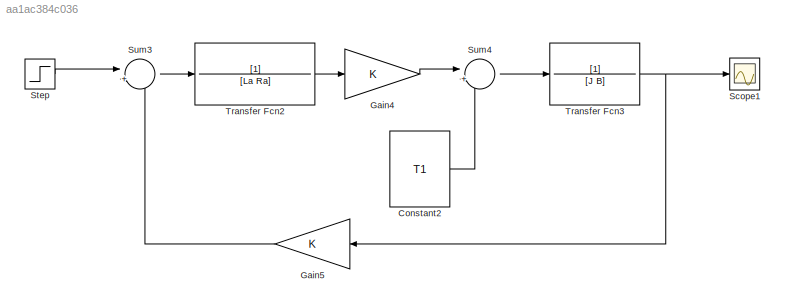
MODEL slx_aa1ac384c036
KIND model
CONFIG AbsTol = auto
CONFIG EnableMultiTasking = off
CONFIG FixedStep = auto
CONFIG MaxStep = auto
CONFIG MinStep = auto
CONFIG RelTol = 1e-3
CONFIG SampleTimeConstraint = Unconstrained
CONFIG SolverName = VariableStepAuto
CONFIG StartTime = 0.0
CONFIG StopTime = 10
BLOCK [Constant] Constant2
  Value = T1
BLOCK [Gain] Gain4
  Gain = K
BLOCK [Gain] Gain5
  Gain = K
BLOCK [Scope] Scope1
  Floating = off
  NumInputPorts = 1
  Ports = [1]
  ScopeSpecificationString = Simulink.scopes.TimeScopeBlockCfg('CurrentConfiguration', extmgr.ConfigurationSet(extmgr.Configuration('Core','General UI',true),extmgr.Configuration('Core','Source UI',true),extmgr.Configuration('Sources','WiredSimulink',true,'DataLoggingVariableName','ScopeData1'),extmgr.Configuration('Visuals','Time Domain',true,'SerializedDisplays',{struct('MinYLimReal','-24.91092','MaxYLimReal','176.75202','Y...<+1447ch>
BLOCK [Step] Step
  After = 240
  SampleTime = 0
BLOCK [Sum] Sum3
  Inputs = |+-
  Ports = [2, 1]
BLOCK [Sum] Sum4
  Inputs = |+-
  Ports = [2, 1]
BLOCK [TransferFcn] Transfer Fcn2
  Denominator = [La Ra]
BLOCK [TransferFcn] Transfer Fcn3
  Denominator = [J B]
LINE Constant2:1 -> Sum4:2
LINE Gain4:1 -> Sum4:1
LINE Gain5:1 -> Sum3:2
LINE Step:1 -> Sum3:1
LINE Sum3:1 -> Transfer Fcn2:1
LINE Sum4:1 -> Transfer Fcn3:1
LINE Transfer Fcn2:1 -> Gain4:1
NET Transfer Fcn3:1 -> Gain5:1, Scope1:1
note: NET lines group one-source signal fan-out (src -> all destinations, sorted); 1:1 wires keep LINE
